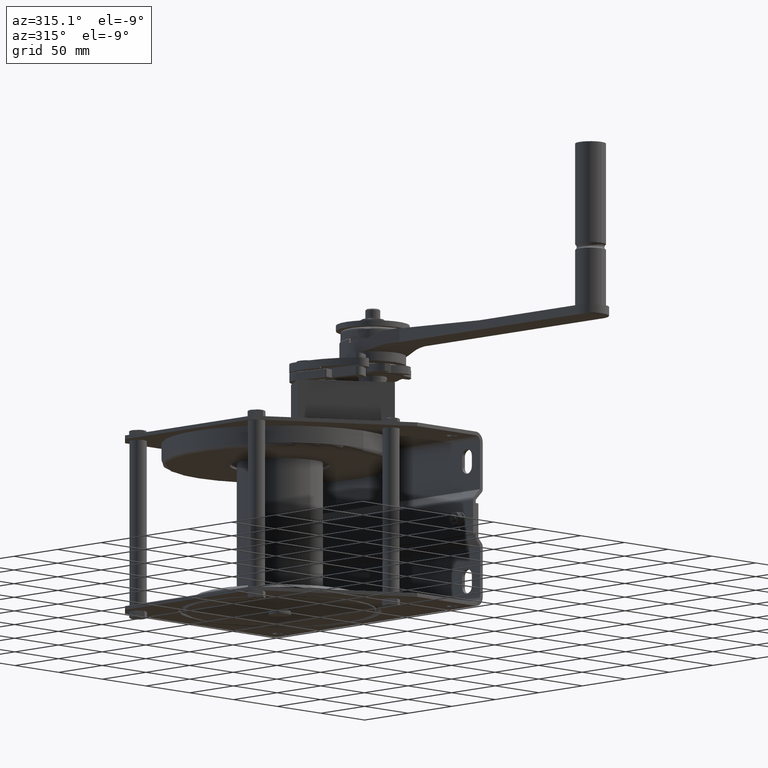
[diagram: clean part render]
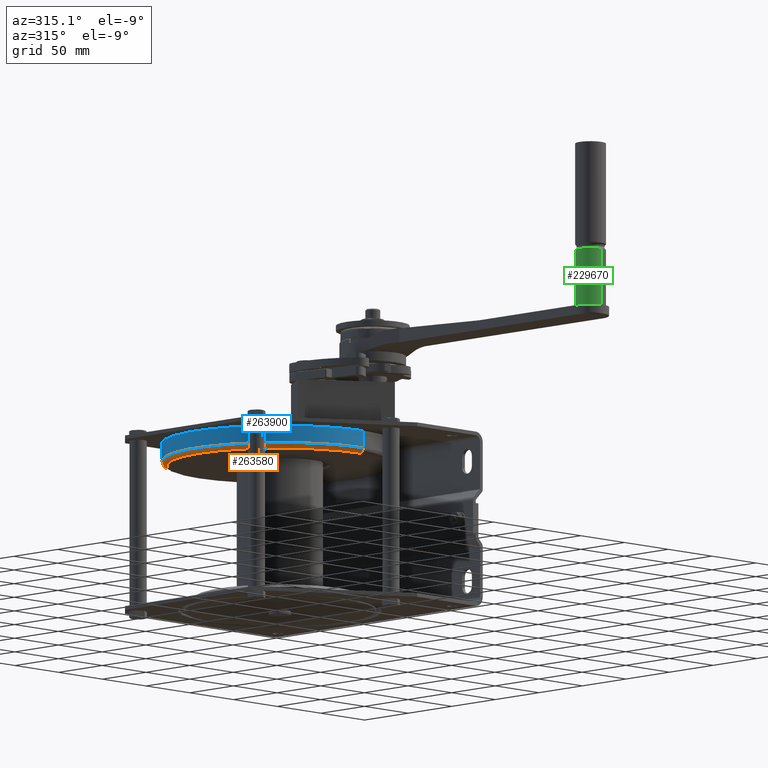
[diagram: same view with three faces highlighted in distinct colors, each labeled with its STEP entity id]
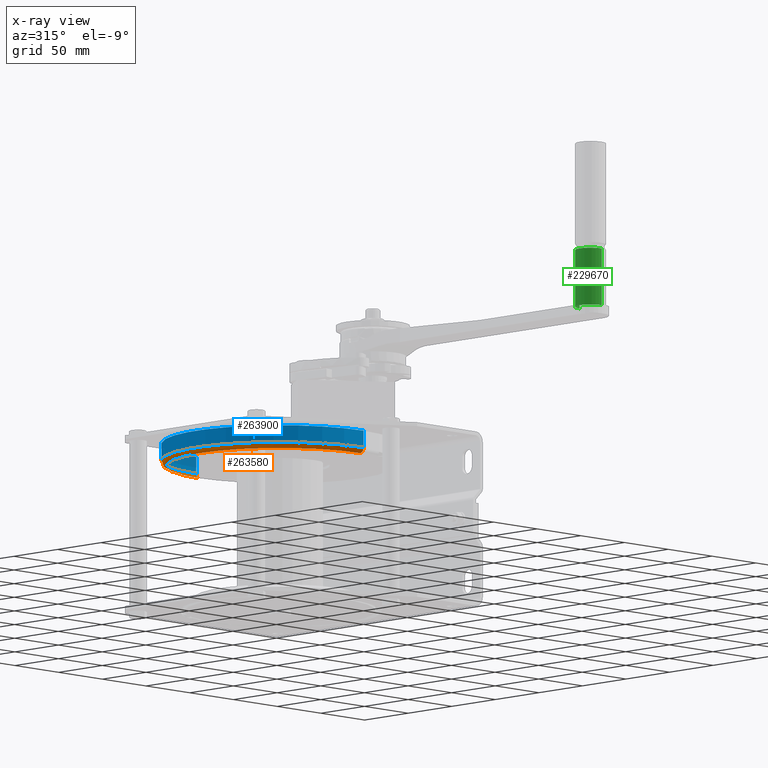
[diagram: x-ray of the same camera — body ghosted, the three highlighted faces saturated]
A machine part, auxiliary view with three faces highlighted in distinct colors.
The next image is the same camera in x-ray (body ghosted, the three faces saturated) — at least one of them is partly hidden behind the body in this view.
Their STEP definitions:

[orange] entity #263580 — the highlighted toroidal blend (fillet) surface has major radius 92 mm and minor (blend) radius 4 mm.
#263090=CARTESIAN_POINT('',(-146.968345091884,-260.918201438849,0.));
#263100=DIRECTION('',(-1.,0.,0.));
#263110=DIRECTION('',(0.,1.,0.));
#263120=AXIS2_PLACEMENT_3D('',#263090,#263100,#263110);
#263130=CIRCLE('',#263120,92.);
#263140=CARTESIAN_POINT('',(-146.968345091884,-168.918201438849,0.));
#263150=VERTEX_POINT('',#263140);
#263160=CARTESIAN_POINT('',(-146.968345091884,-352.918201438849,0.));
#263170=VERTEX_POINT('',#263160);
#263200=EDGE_CURVE('',#263170,#263150,#263130,.T.);
#263250=CARTESIAN_POINT('',(-150.968345091884,-260.918201438849,0.));
#263260=DIRECTION('',(-1.,0.,0.));
#263270=DIRECTION('',(0.,1.,0.));
#263280=AXIS2_PLACEMENT_3D('',#263250,#263260,#263270);
#263290=TOROIDAL_SURFACE('',#263280,92.,4.);
#263300=CARTESIAN_POINT('',(-150.968345091884,-352.918201438849,0.));
#263310=DIRECTION('',(0.,0.,1.));
#263320=DIRECTION('',(-1.,0.,0.));
#263330=AXIS2_PLACEMENT_3D('',#263300,#263310,#263320);
#263340=CIRCLE('',#263330,4.);
#263350=CARTESIAN_POINT('',(-150.968345091884,-356.918201438849,0.));
#263360=VERTEX_POINT('',#263350);
#263370=EDGE_CURVE('',#263360,#263170,#263340,.T.);
#263380=ORIENTED_EDGE('',*,*,#263370,.T.);
#263390=CARTESIAN_POINT('',(-150.968345091884,-260.918201438849,0.));
#263400=DIRECTION('',(-1.,0.,0.));
#263410=DIRECTION('',(0.,1.,0.));
#263420=AXIS2_PLACEMENT_3D('',#263390,#263400,#263410);
#263430=CIRCLE('',#263420,96.);
#263440=CARTESIAN_POINT('',(-150.968345091884,-164.918201438849,0.));
#263450=VERTEX_POINT('',#263440);
#263460=EDGE_CURVE('',#263360,#263450,#263430,.T.);
#263470=ORIENTED_EDGE('',*,*,#263460,.F.);
#263480=CARTESIAN_POINT('',(-150.968345091884,-168.918201438849,0.));
#263490=DIRECTION('',(0.,0.,-1.));
#263500=DIRECTION('',(-1.,0.,0.));
#263510=AXIS2_PLACEMENT_3D('',#263480,#263490,#263500);
#263520=CIRCLE('',#263510,4.);
#263530=EDGE_CURVE('',#263450,#263150,#263520,.T.);
#263540=ORIENTED_EDGE('',*,*,#263530,.F.);
#263550=ORIENTED_EDGE('',*,*,#263200,.T.);
#263560=EDGE_LOOP('',(#263550,#263540,#263470,#263380));
#263570=FACE_OUTER_BOUND('',#263560,.T.);
#263580=ADVANCED_FACE('',(#263570),#263290,.T.);

[blue] entity #263900 — the highlighted cylindrical surface (partial cylindrical patch) has radius 96 mm, axis along (0, 0, -1).
#263350=CARTESIAN_POINT('',(-150.968345091884,-356.918201438849,0.));
#263360=VERTEX_POINT('',#263350);
#263390=CARTESIAN_POINT('',(-150.968345091884,-260.918201438849,0.));
#263400=DIRECTION('',(-1.,0.,0.));
#263410=DIRECTION('',(0.,1.,0.));
#263420=AXIS2_PLACEMENT_3D('',#263390,#263400,#263410);
#263430=CIRCLE('',#263420,96.);
#263440=CARTESIAN_POINT('',(-150.968345091884,-164.918201438849,0.));
#263450=VERTEX_POINT('',#263440);
#263460=EDGE_CURVE('',#263360,#263450,#263430,.T.);
#263590=CARTESIAN_POINT('',(-157.968345091884,-260.918201438849,0.));
#263600=DIRECTION('',(1.,0.,0.));
#263610=DIRECTION('',(0.,1.,0.));
#263620=AXIS2_PLACEMENT_3D('',#263590,#263600,#263610);
#263630=CYLINDRICAL_SURFACE('',#263620,96.);
#263640=CARTESIAN_POINT('',(-157.968345091884,-356.918201438849,
1.17566092718146E-14));
#263650=DIRECTION('',(1.,0.,0.));
#263660=VECTOR('',#263650,1.);
#263670=LINE('',#263640,#263660);
#263680=CARTESIAN_POINT('',(-164.968345091884,-356.918201438849,
1.17566092718146E-14));
#263690=VERTEX_POINT('',#263680);
#263700=EDGE_CURVE('',#263690,#263360,#263670,.T.);
#263710=ORIENTED_EDGE('',*,*,#263700,.T.);
#263720=CARTESIAN_POINT('',(-164.968345091884,-260.918201438849,0.));
#263730=DIRECTION('',(-1.,0.,0.));
#263740=DIRECTION('',(0.,1.,0.));
#263750=AXIS2_PLACEMENT_3D('',#263720,#263730,#263740);
#263760=CIRCLE('',#263750,96.);
#263770=CARTESIAN_POINT('',(-164.968345091884,-164.918201438849,0.));
#263780=VERTEX_POINT('',#263770);
#263790=EDGE_CURVE('',#263690,#263780,#263760,.T.);
#263800=ORIENTED_EDGE('',*,*,#263790,.F.);
#263810=CARTESIAN_POINT('',(-157.968345091884,-164.918201438849,0.));
#263820=DIRECTION('',(1.,0.,0.));
#263830=VECTOR('',#263820,1.);
#263840=LINE('',#263810,#263830);
#263850=EDGE_CURVE('',#263780,#263450,#263840,.T.);
#263860=ORIENTED_EDGE('',*,*,#263850,.F.);
#263870=ORIENTED_EDGE('',*,*,#263460,.T.);
#263880=EDGE_LOOP('',(#263870,#263860,#263800,#263710));
#263890=FACE_OUTER_BOUND('',#263880,.T.);
#263900=ADVANCED_FACE('',(#263890),#263630,.T.);

[green] entity #229670 — the highlighted cylindrical surface (edge-blend (fillet) strip) has radius 12.5 mm, axis along (-0, -0, 1).
#195020=CARTESIAN_POINT('',(6.21724893790088E-15,6.3948846218409E-14,
7.80000000000012));
#195030=DIRECTION('',(-1.11022302462516E-16,-6.93889390390723E-18,1.));
#195040=DIRECTION('',(0.0186882750365621,-0.999825358938329,
-4.86286676449715E-18));
#195050=AXIS2_PLACEMENT_3D('',#195020,#195030,#195040);
#195060=CIRCLE('',#195050,12.5);
#195070=CARTESIAN_POINT('',(0.233603437957033,-12.497816986729,
7.80000000000013));
#195080=VERTEX_POINT('',#195070);
#195090=CARTESIAN_POINT('',(-0.233603437957019,12.4978169867292,
7.80000000000012));
#195100=VERTEX_POINT('',#195090);
#195130=EDGE_CURVE('',#195100,#195080,#195060,.T.);
#216840=CARTESIAN_POINT('',(-0.233603437957019,12.4978169867292,
7.80000000000013));
#216850=DIRECTION('',(-1.11022302462516E-16,-6.93889390390723E-18,1.));
#216860=VECTOR('',#216850,1.);
#216870=LINE('',#216840,#216860);
#216880=CARTESIAN_POINT('',(-0.233603437957039,12.4978169867292,
54.3633014137979));
#216890=VERTEX_POINT('',#216880);
#216900=EDGE_CURVE('',#195100,#216890,#216870,.T.);
#216930=CARTESIAN_POINT('',(0.233603437957033,-12.497816986729,
7.80000000000013));
#216940=DIRECTION('',(-1.11022302462516E-16,-6.93889390390723E-18,1.));
#216950=VECTOR('',#216940,1.);
#216960=LINE('',#216930,#216950);
#216970=CARTESIAN_POINT('',(0.233603437957015,-12.497816986729,
54.3633014137979));
#216980=VERTEX_POINT('',#216970);
#216990=EDGE_CURVE('',#195080,#216980,#216960,.T.);
#217010=CARTESIAN_POINT('',(-1.15463194561016E-14,7.8159700933611E-14,
54.3633014137979));
#217020=DIRECTION('',(-1.11022302462516E-16,-6.93889390390723E-18,1.));
#217030=DIRECTION('',(0.0186882750365621,-0.999825358938329,
-4.86286676449715E-18));
#217040=AXIS2_PLACEMENT_3D('',#217010,#217020,#217030);
#217050=CIRCLE('',#217040,12.5);
#229550=CARTESIAN_POINT('',(6.21724893790088E-15,6.3948846218409E-14,
7.80000000000013));
#229560=DIRECTION('',(-1.11022302462516E-16,-6.93889390390723E-18,1.));
#229570=DIRECTION('',(0.0186882750365621,-0.999825358938329,
-4.86286676449715E-18));
#229580=AXIS2_PLACEMENT_3D('',#229550,#229560,#229570);
#229590=CYLINDRICAL_SURFACE('',#229580,12.5);
#229600=ORIENTED_EDGE('',*,*,#216900,.F.);
#229610=EDGE_CURVE('',#216890,#216980,#217050,.T.);
#229620=ORIENTED_EDGE('',*,*,#229610,.F.);
#229630=ORIENTED_EDGE('',*,*,#216990,.T.);
#229640=ORIENTED_EDGE('',*,*,#195130,.T.);
#229650=EDGE_LOOP('',(#229640,#229630,#229620,#229600));
#229660=FACE_OUTER_BOUND('',#229650,.T.);
#229670=ADVANCED_FACE('',(#229660),#229590,.T.);